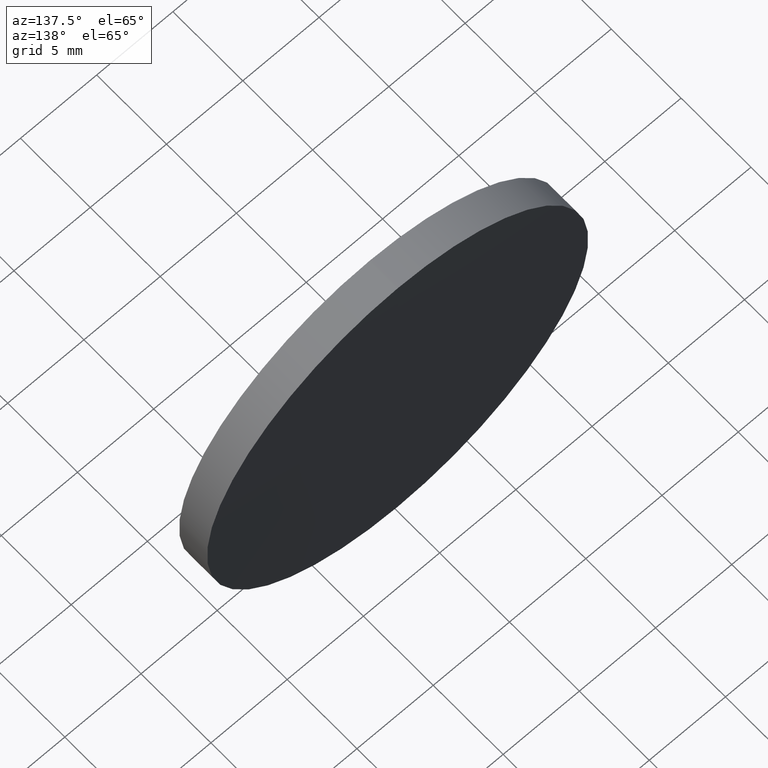
[diagram: clean part render]
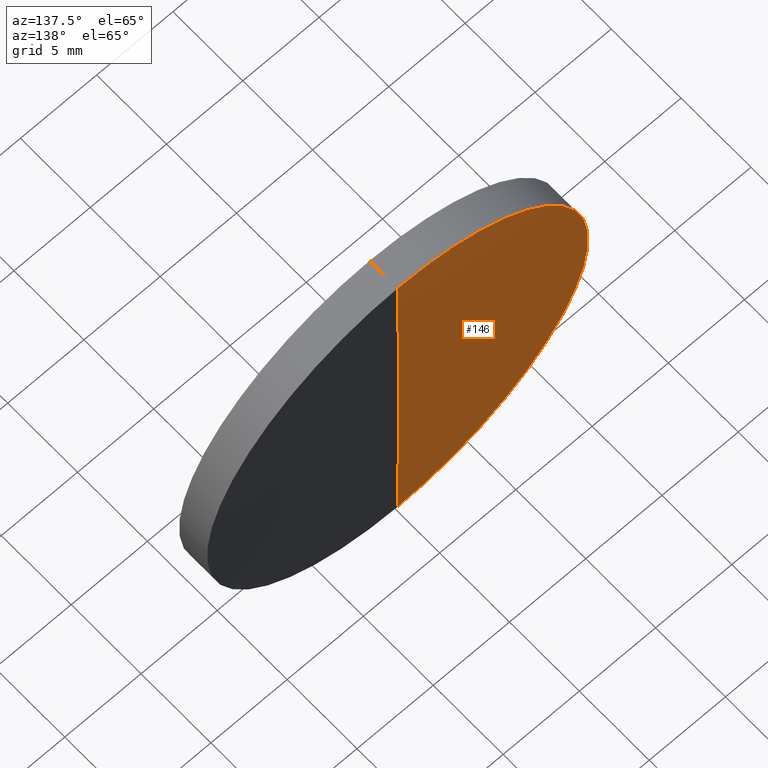
[diagram: same view with one face highlighted and labeled with its STEP entity id]
A machine part, auxiliary view. The second image highlights one B-rep face of the part: STEP entity #146.
In plain terms, the highlighted toroidal blend (fillet) surface has major radius 2.9426 mm and minor (blend) radius 1033.6 mm.
Its self-contained STEP definition (entity closure, byte-faithful):
#5 = DIRECTION ( 'NONE',  ( 0.000000000000000000, 0.000000000000000000, 1.000000000000000000 ) ) ;
#6 = CIRCLE ( 'NONE', #101, 1033.599999999999909 ) ;
#19 = CARTESIAN_POINT ( 'NONE',  ( 0.000000000000000000, -1031.555811405951317, 2.942557403500804192 ) ) ;
#36 = DIRECTION ( 'NONE',  ( 1.000000000000000000, 0.000000000000000000, 1.224646799147353207E-16 ) ) ;
#43 = EDGE_LOOP ( 'NONE', ( #73, #126, #182 ) ) ;
#51 = DIRECTION ( 'NONE',  ( 0.000000000000000000, 0.000000000000000000, 1.000000000000000000 ) ) ;
#67 = CARTESIAN_POINT ( 'NONE',  ( 0.000000000000000000, 1.999999999999998224, 0.000000000000000000 ) ) ;
#68 = AXIS2_PLACEMENT_3D ( 'NONE', #19, #193, #51 ) ;
#73 = ORIENTED_EDGE ( 'NONE', *, *, #147, .F. ) ;
#82 = CARTESIAN_POINT ( 'NONE',  ( 0.000000000000000000, 2.040000000000000036, 0.000000000000000000 ) ) ;
#83 = FACE_OUTER_BOUND ( 'NONE', #43, .T. ) ;
#98 = VERTEX_POINT ( 'NONE', #82 ) ;
#101 = AXIS2_PLACEMENT_3D ( 'NONE', #192, #36, #171 ) ;
#105 = CIRCLE ( 'NONE', #68, 1033.599999999999909 ) ;
#107 = VERTEX_POINT ( 'NONE', #142 ) ;
#115 = CARTESIAN_POINT ( 'NONE',  ( 0.000000000000000000, -1031.555811405951317, 0.000000000000000000 ) ) ;
#122 = AXIS2_PLACEMENT_3D ( 'NONE', #67, #174, #5 ) ;
#125 = EDGE_CURVE ( 'NONE', #179, #107, #198, .T. ) ;
#126 = ORIENTED_EDGE ( 'NONE', *, *, #125, .T. ) ;
#128 = DIRECTION ( 'NONE',  ( 0.000000000000000000, 0.000000000000000000, 1.000000000000000000 ) ) ;
#138 = EDGE_CURVE ( 'NONE', #107, #98, #105, .T. ) ;
#142 = CARTESIAN_POINT ( 'NONE',  ( 0.000000000000000000, 2.000000000000000000, 12.49999999999528555 ) ) ;
#143 = TOROIDAL_SURFACE ( 'NONE', #177, 2.942557403500804192, 1033.599999999999909 ) ;
#146 = ADVANCED_FACE ( 'NONE', ( #83 ), #143, .T. ) ;
#147 = EDGE_CURVE ( 'NONE', #179, #98, #6, .T. ) ;
#158 = CARTESIAN_POINT ( 'NONE',  ( 1.530808498933614470E-15, 2.000000000000000000, -12.49999999999528555 ) ) ;
#171 = DIRECTION ( 'NONE',  ( 1.224646799147353207E-16, 0.000000000000000000, -1.000000000000000000 ) ) ;
#172 = DIRECTION ( 'NONE',  ( -0.000000000000000000, 1.000000000000000000, -0.000000000000000000 ) ) ;
#174 = DIRECTION ( 'NONE',  ( -0.000000000000000000, 1.000000000000000000, -0.000000000000000000 ) ) ;
#177 = AXIS2_PLACEMENT_3D ( 'NONE', #115, #172, #128 ) ;
#179 = VERTEX_POINT ( 'NONE', #158 ) ;
#182 = ORIENTED_EDGE ( 'NONE', *, *, #138, .T. ) ;
#192 = CARTESIAN_POINT ( 'NONE',  ( 3.603593505504606522E-16, -1031.555811405951317, -2.942557403500804192 ) ) ;
#193 = DIRECTION ( 'NONE',  ( -1.000000000000000000, 0.000000000000000000, 0.000000000000000000 ) ) ;
#198 = CIRCLE ( 'NONE', #122, 12.50000000000000000 ) ;